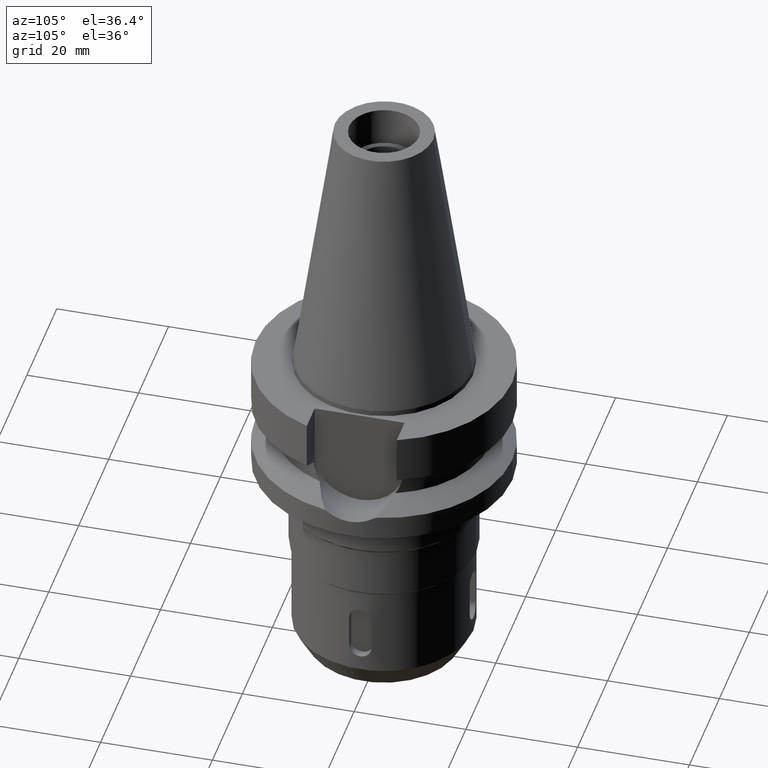
[diagram: clean part render]
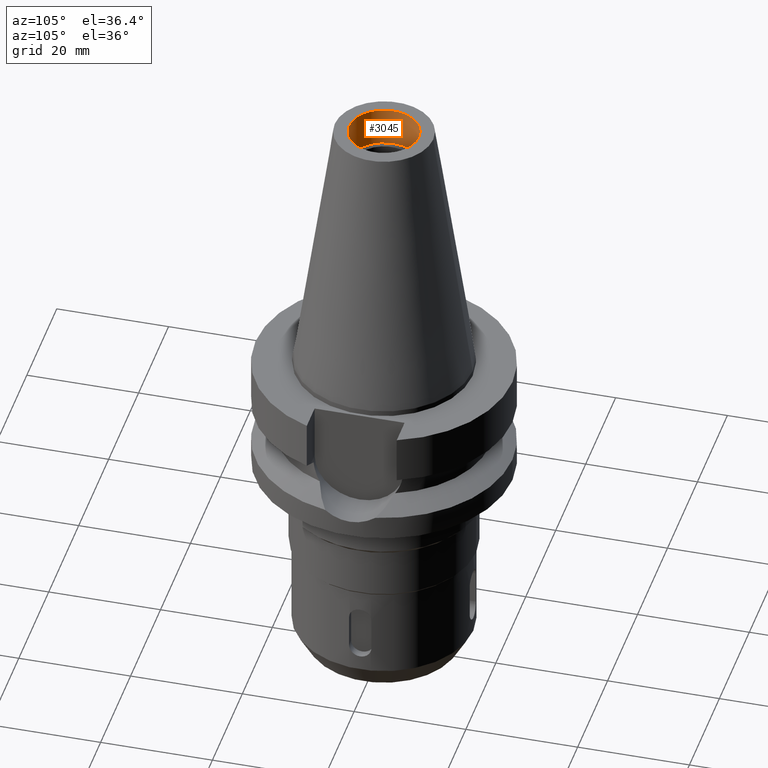
[diagram: same view with one face highlighted and labeled with its STEP entity id]
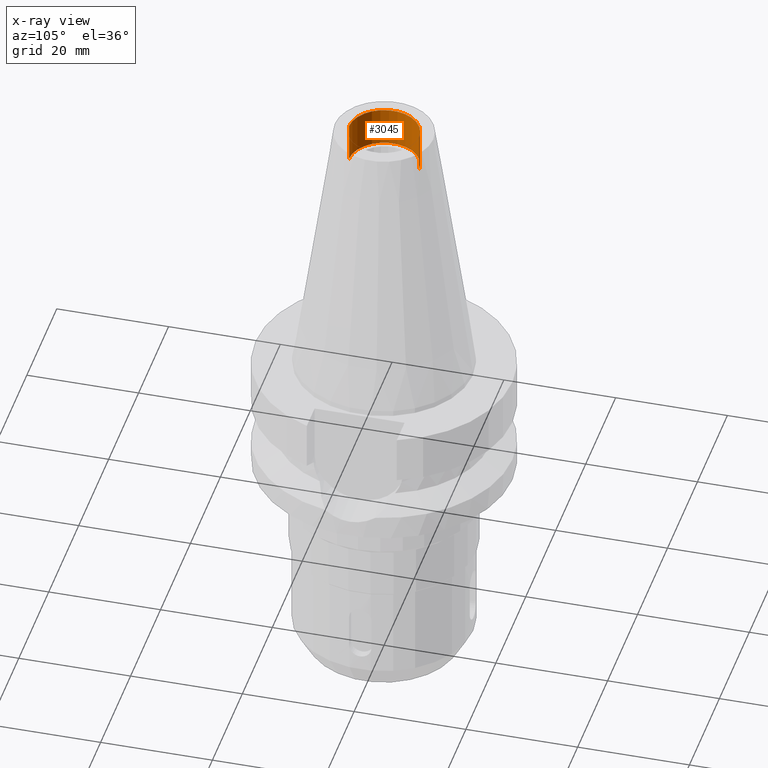
[diagram: x-ray of the same camera — body ghosted, the highlighted face saturated]
A machine part, auxiliary view. The second image highlights one B-rep face of the part: STEP entity #3045.
The next image is the same camera in x-ray: the body ghosted, the highlighted face saturated — about 0% of this face is hidden behind the body in this view.
In plain terms, the highlighted cylindrical surface (edge-blend (fillet) strip) has radius 6.25 mm, axis along (0, 0, -1).
Its self-contained STEP definition (entity closure, byte-faithful):
#42=CARTESIAN_POINT('',(0.E0,1.883751706448E-14,4.84E1));
#43=DIRECTION('',(0.E0,0.E0,1.E0));
#44=DIRECTION('',(0.E0,1.E0,0.E0));
#45=AXIS2_PLACEMENT_3D('',#42,#43,#44);
#1367=CARTESIAN_POINT('',(0.E0,1.883751706448E-14,4.14E1));
#1368=DIRECTION('',(0.E0,0.E0,-1.E0));
#1369=DIRECTION('',(0.E0,-1.E0,0.E0));
#1370=AXIS2_PLACEMENT_3D('',#1367,#1368,#1369);
#1399=DIRECTION('',(0.E0,0.E0,1.E0));
#1400=VECTOR('',#1399,7.E0);
#1401=CARTESIAN_POINT('',(0.E0,-6.25E0,4.14E1));
#1402=LINE('',#1401,#1400);
#1406=DIRECTION('',(0.E0,0.E0,1.E0));
#1407=VECTOR('',#1406,7.E0);
#1408=CARTESIAN_POINT('',(0.E0,6.25E0,4.14E1));
#1409=LINE('',#1408,#1407);
#1749=CARTESIAN_POINT('',(0.E0,-6.25E0,4.84E1));
#1750=CARTESIAN_POINT('',(0.E0,6.25E0,4.84E1));
#1751=VERTEX_POINT('',#1749);
#1752=VERTEX_POINT('',#1750);
#1753=CARTESIAN_POINT('',(0.E0,6.25E0,4.14E1));
#1754=VERTEX_POINT('',#1753);
#1755=CARTESIAN_POINT('',(0.E0,-6.25E0,4.14E1));
#1756=VERTEX_POINT('',#1755);
#3032=CARTESIAN_POINT('',(0.E0,1.883751706448E-14,5.382E1));
#3033=DIRECTION('',(0.E0,0.E0,-1.E0));
#3034=DIRECTION('',(0.E0,-1.E0,0.E0));
#3035=AXIS2_PLACEMENT_3D('',#3032,#3033,#3034);
#3036=CYLINDRICAL_SURFACE('',#3035,6.25E0);
#3038=ORIENTED_EDGE('',*,*,#3037,.F.);
#3039=ORIENTED_EDGE('',*,*,#3021,.F.);
#3041=ORIENTED_EDGE('',*,*,#3040,.T.);
#3042=ORIENTED_EDGE('',*,*,#2008,.F.);
#3043=EDGE_LOOP('',(#3038,#3039,#3041,#3042));
#3044=FACE_OUTER_BOUND('',#3043,.F.);
#46=CIRCLE('',#45,6.25E0);
#1371=CIRCLE('',#1370,6.25E0);
#2008=EDGE_CURVE('',#1752,#1751,#46,.T.);
#3021=EDGE_CURVE('',#1756,#1754,#1371,.T.);
#3037=EDGE_CURVE('',#1754,#1752,#1409,.T.);
#3040=EDGE_CURVE('',#1756,#1751,#1402,.T.);
#3045=ADVANCED_FACE('',(#3044),#3036,.F.);